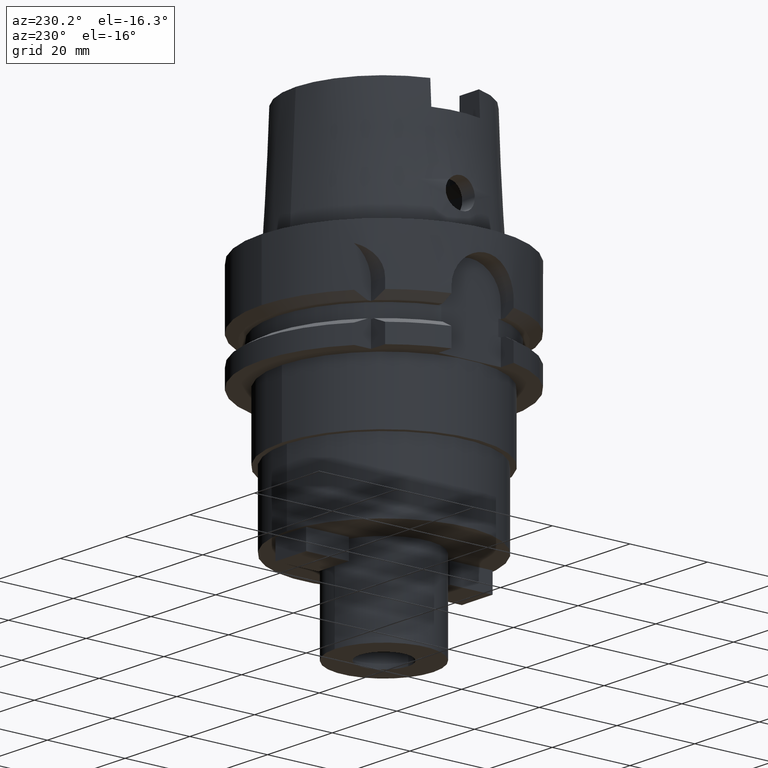
[diagram: clean part render]
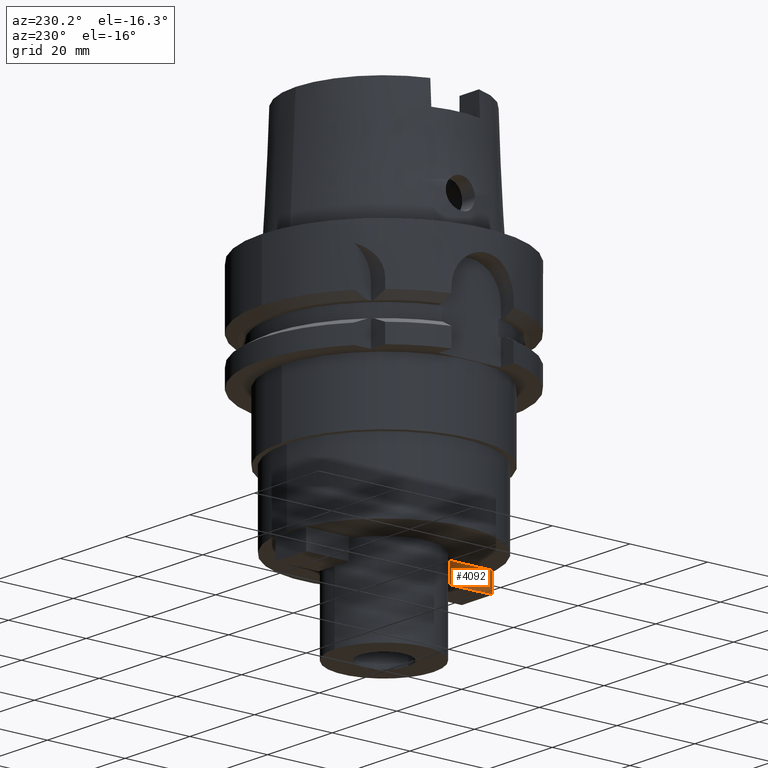
[diagram: same view with one face highlighted and labeled with its STEP entity id]
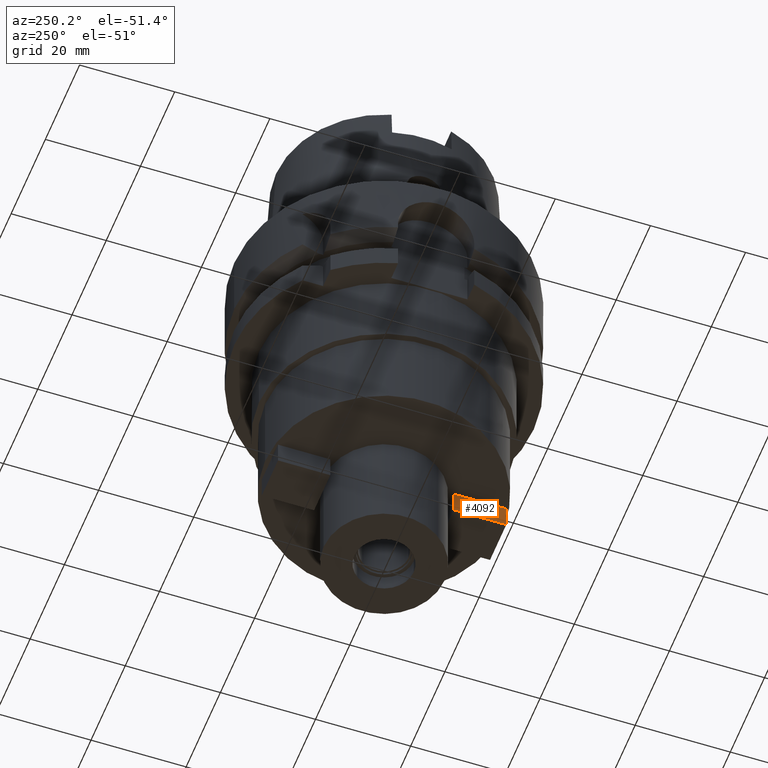
[diagram: same view with one face highlighted and labeled with its STEP entity id]
A machine part, auxiliary view. The second image highlights one B-rep face of the part: STEP entity #4092.
A second angle (auxiliary view) of the same face is appended — the face is thin or edge-on in the first view.
In plain terms, the highlighted planar face has unit normal (-1, 0, 0).
Its self-contained STEP definition (entity closure, byte-faithful):
#2118=DIRECTION('',(0.E0,-1.E0,0.E0));
#2119=VECTOR('',#2118,1.1E1);
#2120=CARTESIAN_POINT('',(-4.75E0,-1.3E1,-6.E1));
#2121=LINE('',#2120,#2119);
#2125=DIRECTION('',(0.E0,0.E0,-1.E0));
#2126=VECTOR('',#2125,5.E0);
#2127=CARTESIAN_POINT('',(-4.75E0,-2.4E1,-6.E1));
#2128=LINE('',#2127,#2126);
#2132=DIRECTION('',(0.E0,1.E0,0.E0));
#2133=VECTOR('',#2132,1.1E1);
#2134=CARTESIAN_POINT('',(-4.75E0,-2.4E1,-6.5E1));
#2135=LINE('',#2134,#2133);
#2139=DIRECTION('',(0.E0,0.E0,1.E0));
#2140=VECTOR('',#2139,5.E0);
#2141=CARTESIAN_POINT('',(-4.75E0,-1.3E1,-6.5E1));
#2142=LINE('',#2141,#2140);
#2322=CARTESIAN_POINT('',(-4.75E0,-2.4E1,-6.E1));
#2323=VERTEX_POINT('',#2322);
#2324=CARTESIAN_POINT('',(-4.75E0,-1.3E1,-6.E1));
#2325=VERTEX_POINT('',#2324);
#2504=CARTESIAN_POINT('',(-4.75E0,-1.3E1,-6.5E1));
#2505=VERTEX_POINT('',#2504);
#2506=CARTESIAN_POINT('',(-4.75E0,-2.4E1,-6.5E1));
#2507=VERTEX_POINT('',#2506);
#4079=CARTESIAN_POINT('',(-4.75E0,0.E0,0.E0));
#4080=DIRECTION('',(-1.E0,0.E0,0.E0));
#4081=DIRECTION('',(0.E0,0.E0,1.E0));
#4082=AXIS2_PLACEMENT_3D('',#4079,#4080,#4081);
#4083=PLANE('',#4082);
#4084=ORIENTED_EDGE('',*,*,#3467,.T.);
#4086=ORIENTED_EDGE('',*,*,#4085,.T.);
#4088=ORIENTED_EDGE('',*,*,#4087,.T.);
#4089=ORIENTED_EDGE('',*,*,#4071,.T.);
#4090=EDGE_LOOP('',(#4084,#4086,#4088,#4089));
#4091=FACE_OUTER_BOUND('',#4090,.F.);
#3467=EDGE_CURVE('',#2325,#2323,#2121,.T.);
#4071=EDGE_CURVE('',#2505,#2325,#2142,.T.);
#4085=EDGE_CURVE('',#2323,#2507,#2128,.T.);
#4087=EDGE_CURVE('',#2507,#2505,#2135,.T.);
#4092=ADVANCED_FACE('',(#4091),#4083,.T.);